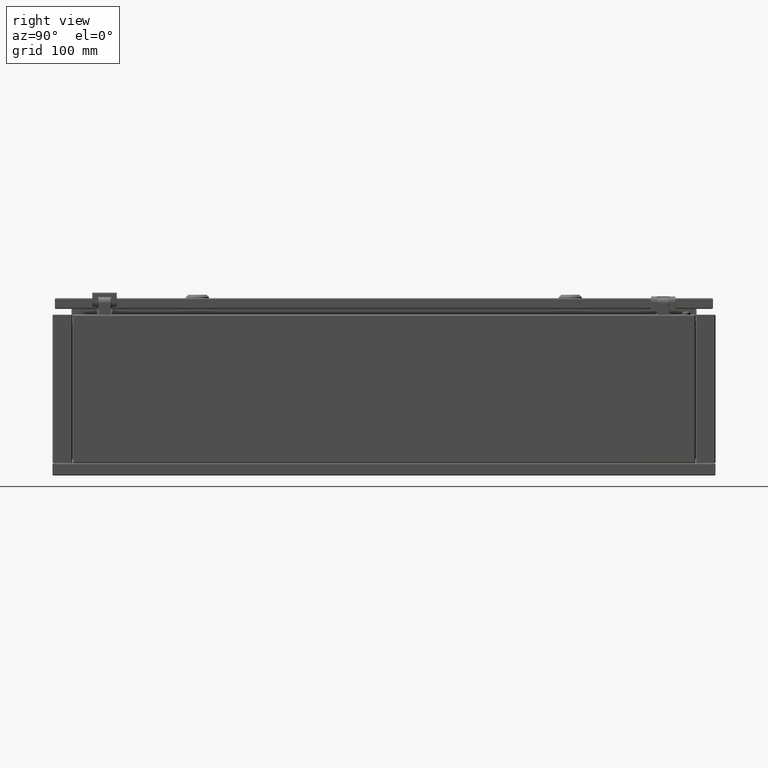
[diagram: clean part render]
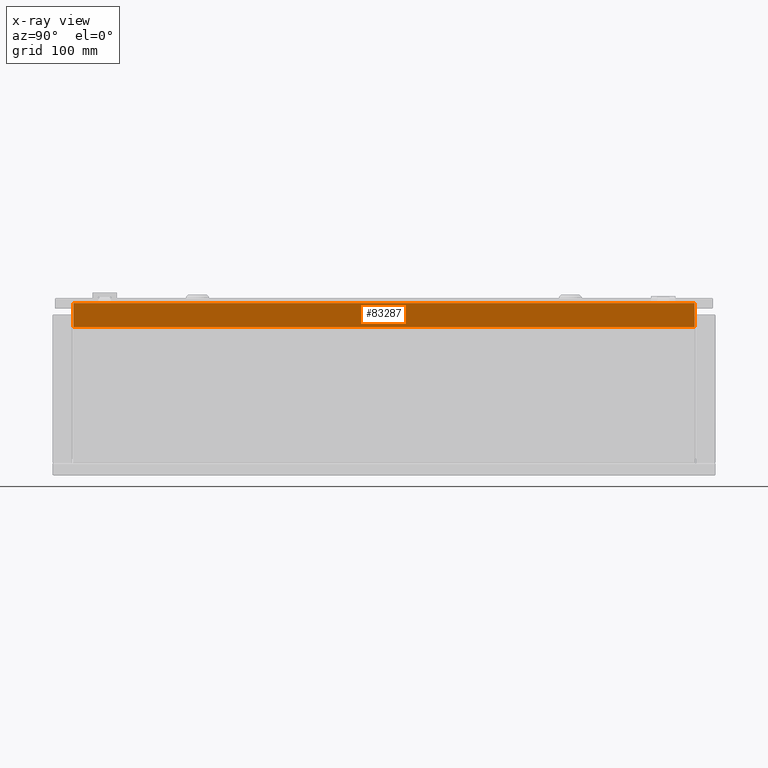
[diagram: x-ray — body ghosted, one internal face saturated and labeled with its STEP entity id]
A machine part, right view, then the same camera in x-ray: the body is ghosted and one INTERNAL B-rep face — a face not visible from any outside direction — is saturated and labeled: STEP entity #83287.
In plain terms, the highlighted planar face has unit normal (-1, 0, 0).
Its self-contained STEP definition (entity closure, byte-faithful):
#1287 = VERTEX_POINT ( 'NONE', #82381 ) ;
#7489 = CARTESIAN_POINT ( 'NONE',  ( 125.0000000000011900, -1.054711873393899900E-012, 178.0500000000000100 ) ) ;
#7810 = LINE ( 'NONE', #13948, #86954 ) ;
#7897 = CARTESIAN_POINT ( 'NONE',  ( 125.0000000000011900, -1.054711873393899900E-012, 192.5250000000000100 ) ) ;
#8541 = CARTESIAN_POINT ( 'NONE',  ( 125.0000000000011900, -1.054711873393899900E-012, 207.0000000000000000 ) ) ;
#9110 = ORIENTED_EDGE ( 'NONE', *, *, #19251, .F. ) ;
#10787 = AXIS2_PLACEMENT_3D ( 'NONE', #7897, #15355, #22497 ) ;
#13948 = CARTESIAN_POINT ( 'NONE',  ( 125.0000000000011900, 374.7500000000000000, 192.5250000000000100 ) ) ;
#14041 = ORIENTED_EDGE ( 'NONE', *, *, #72778, .F. ) ;
#14211 = DIRECTION ( 'NONE',  ( -1.665334536937764900E-016, -1.000000000000000000, 2.059032286455604700E-016 ) ) ;
#15355 = DIRECTION ( 'NONE',  ( -1.000000000000000000, 1.665334536937775000E-016, 3.965082230804130600E-015 ) ) ;
#15709 = VECTOR ( 'NONE', #14211, 1000.000000000000000 ) ;
#19251 = EDGE_CURVE ( 'NONE', #37544, #1287, #27408, .T. ) ;
#19752 = CARTESIAN_POINT ( 'NONE',  ( 125.0000000000011900, -374.7500000000000000, 192.5250000000000100 ) ) ;
#21334 = PLANE ( 'NONE',  #10787 ) ;
#22497 = DIRECTION ( 'NONE',  ( -1.665334536937769800E-016, -1.000000000000000000, 1.318389841742359800E-016 ) ) ;
#23934 = VERTEX_POINT ( 'NONE', #43629 ) ;
#27408 = LINE ( 'NONE', #19752, #81965 ) ;
#29708 = ORIENTED_EDGE ( 'NONE', *, *, #64393, .F. ) ;
#37544 = VERTEX_POINT ( 'NONE', #56575 ) ;
#41029 = VERTEX_POINT ( 'NONE', #67018 ) ;
#41369 = LINE ( 'NONE', #7489, #66996 ) ;
#43629 = CARTESIAN_POINT ( 'NONE',  ( 125.0000000000011900, 374.7500000000000000, 207.0000000000000000 ) ) ;
#46041 = DIRECTION ( 'NONE',  ( -3.954062174942385400E-015, -2.984620852784145000E-016, -1.000000000000000000 ) ) ;
#56575 = CARTESIAN_POINT ( 'NONE',  ( 125.0000000000011900, -374.7500000000000000, 207.0000000000000000 ) ) ;
#64393 = EDGE_CURVE ( 'NONE', #23934, #37544, #69120, .T. ) ;
#66996 = VECTOR ( 'NONE', #75559, 1000.000000000000000 ) ;
#67018 = CARTESIAN_POINT ( 'NONE',  ( 125.0000000000011900, 374.7500000000000000, 178.0500000000000100 ) ) ;
#69120 = LINE ( 'NONE', #8541, #15709 ) ;
#72778 = EDGE_CURVE ( 'NONE', #41029, #23934, #7810, .T. ) ;
#73428 = EDGE_LOOP ( 'NONE', ( #74887, #9110, #29708, #14041 ) ) ;
#74579 = DIRECTION ( 'NONE',  ( 3.954062174942385400E-015, 2.984620852784145000E-016, 1.000000000000000000 ) ) ;
#74887 = ORIENTED_EDGE ( 'NONE', *, *, #81422, .F. ) ;
#75559 = DIRECTION ( 'NONE',  ( 1.665334536937764900E-016, 1.000000000000000000, -2.059032286455604700E-016 ) ) ;
#81422 = EDGE_CURVE ( 'NONE', #1287, #41029, #41369, .T. ) ;
#81965 = VECTOR ( 'NONE', #46041, 1000.000000000000000 ) ;
#82381 = CARTESIAN_POINT ( 'NONE',  ( 125.0000000000000000, -374.7500000000000000, 178.0500000000000100 ) ) ;
#83287 = ADVANCED_FACE ( 'NONE', ( #85993 ), #21334, .T. ) ;
#85993 = FACE_OUTER_BOUND ( 'NONE', #73428, .T. ) ;
#86954 = VECTOR ( 'NONE', #74579, 1000.000000000000000 ) ;